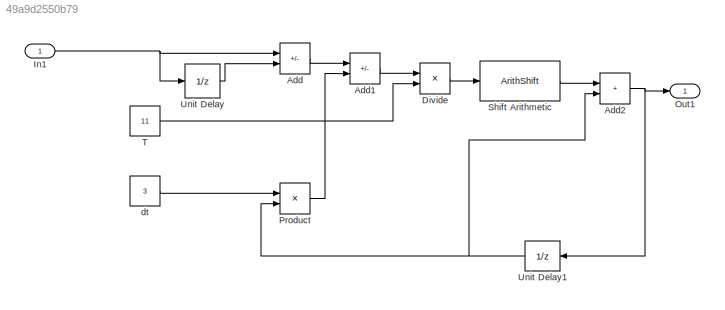
MODEL slx_49a9d2550b79
KIND model
CONFIG AbsTol = auto
CONFIG EnableMultiTasking = off
CONFIG FixedStep = auto
CONFIG MaxStep = auto
CONFIG MinStep = auto
CONFIG RelTol = 1e-3
CONFIG SampleTimeConstraint = Unconstrained
CONFIG SolverName = FixedStepDiscrete
CONFIG StartTime = 0.0
CONFIG StopTime = 10
BLOCK [Sum] Add
  IconShape = rectangular
  Inputs = +-
BLOCK [Sum] Add1
  IconShape = rectangular
  Inputs = +-
BLOCK [Sum] Add2
  IconShape = rectangular
BLOCK [Product] Divide
  Inputs = **
  OutDataTypeStr = int32
BLOCK [Inport] In1
  OutDataTypeStr = int32
BLOCK [Outport] Out1
BLOCK [Product] Product
  OutDataTypeStr = int32
BLOCK [ArithShift] Shift Arithmetic
  BitShiftDirection = Right
  BitShiftNumber = 8
  InputPortMap = u0
BLOCK [Constant] T
  OutDataTypeStr = int32
  SampleTime = 0.1
  Value = 11
BLOCK [UnitDelay] Unit Delay
  HasFrameUpgradeWarning = on
  SampleTime = -1
BLOCK [UnitDelay] Unit Delay1
  HasFrameUpgradeWarning = on
  SampleTime = -1
BLOCK [Constant] dt
  OutDataTypeStr = int32
  SampleTime = 0.1
  Value = 3
LINE Add1:1 -> Divide:1
NET Add2:1 -> Out1:1, Unit Delay1:1
LINE Add:1 -> Add1:1
LINE Divide:1 -> Shift Arithmetic:1
NET In1:1 -> Add:1, Unit Delay:1
LINE Product:1 -> Add1:2
LINE Shift Arithmetic:1 -> Add2:1
LINE T:1 -> Divide:2
NET Unit Delay1:1 -> Add2:2, Product:2
LINE Unit Delay:1 -> Add:2
LINE dt:1 -> Product:1
note: NET lines group one-source signal fan-out (src -> all destinations, sorted); 1:1 wires keep LINE
